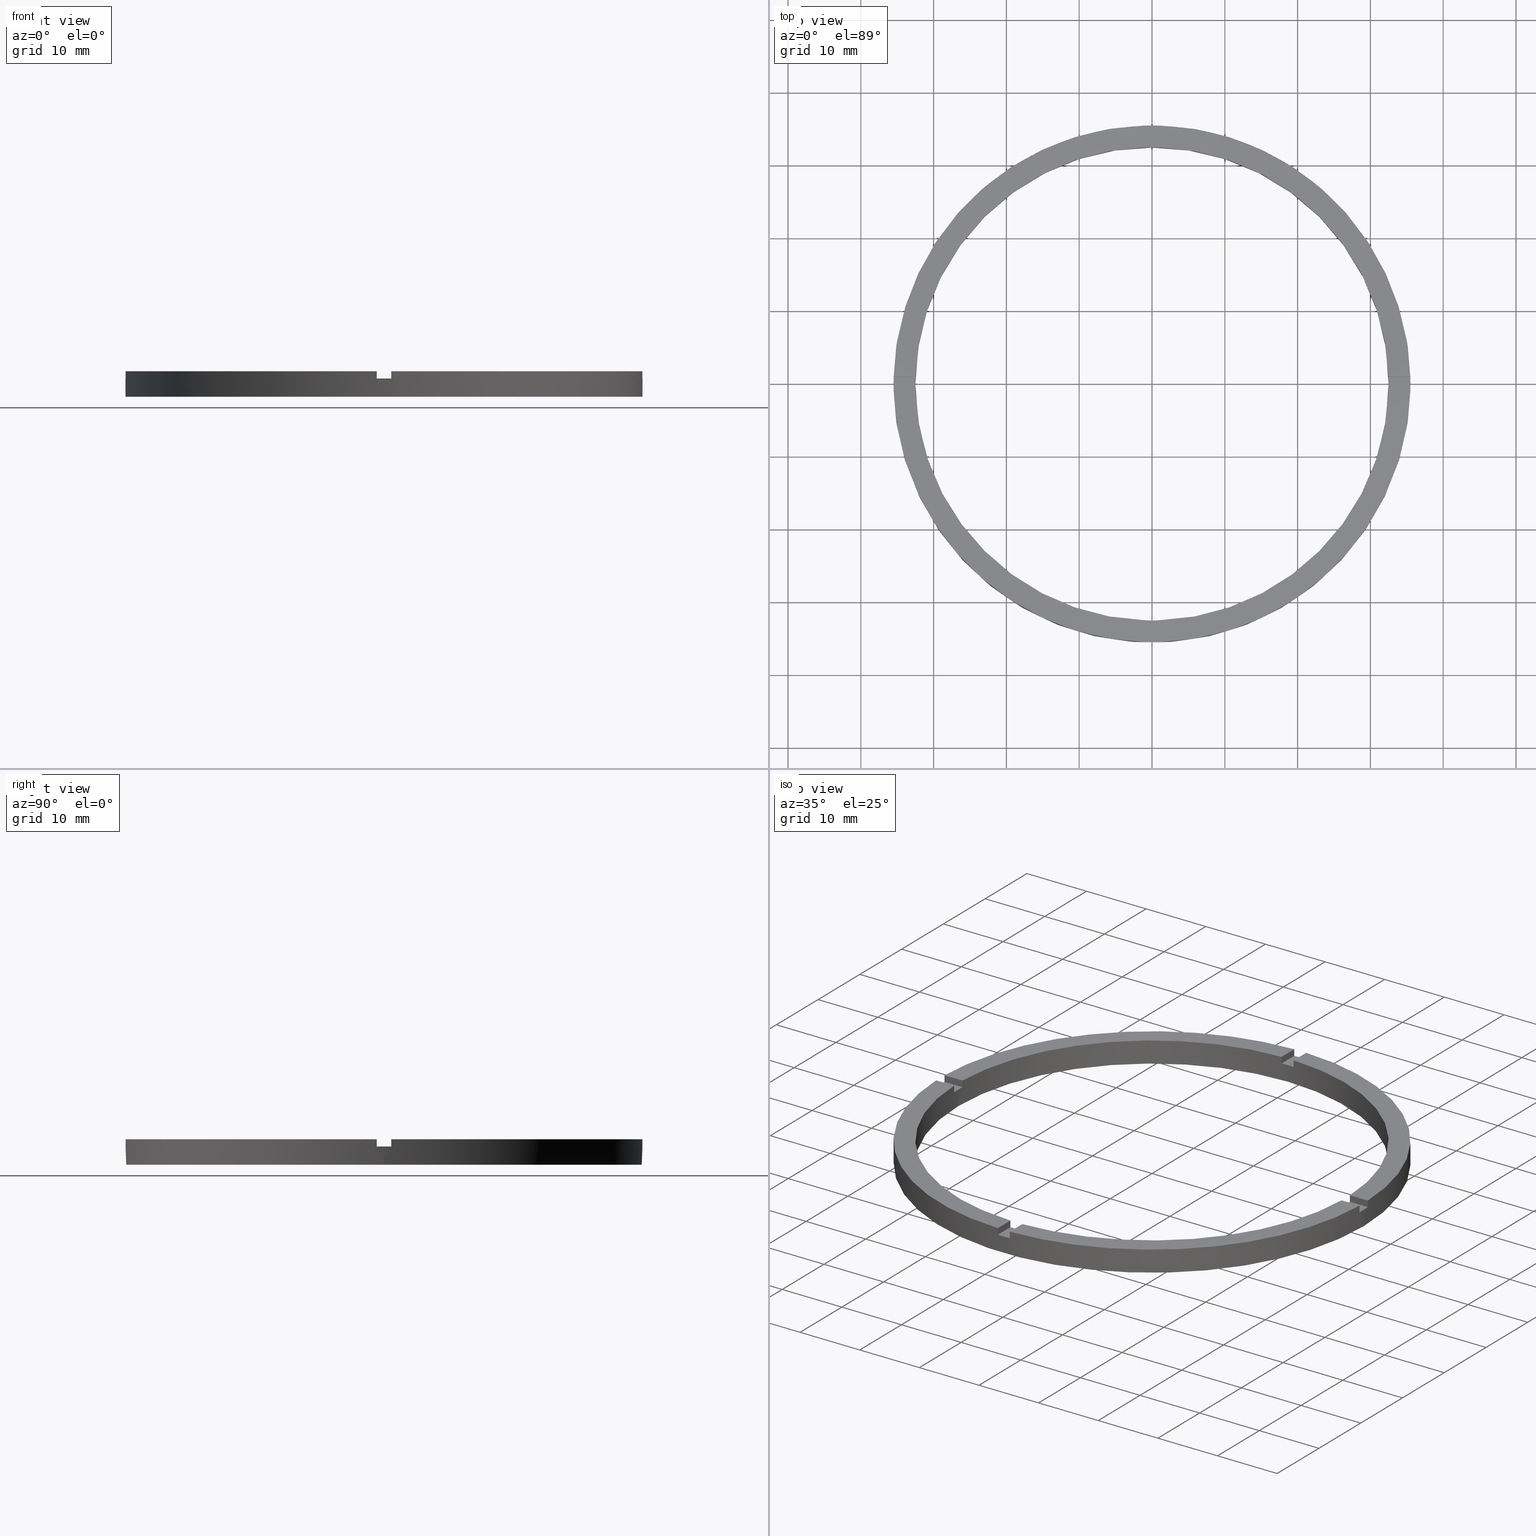
[diagram: canonical four-view strip — front | top / right | iso, engineering-drawing reading convention]
A machine part, canonical four-view strip (front | top / right | iso — engineering-drawing reading convention). The complete STEP part file that produces these views, byte-faithful:
ISO-10303-21;
HEADER;
FILE_DESCRIPTION (( 'STEP AP203' ),
    '1' );
FILE_NAME ('514146.step',
    '2024-12-26T02:41:58',
    ( 'MSI' ),
    ( '' ),
    'SwSTEP 2.0',
    'SolidWorks 2020',
    '' );
FILE_SCHEMA (( 'CONFIG_CONTROL_DESIGN' ));
ENDSEC;

DATA;
#1 = APPROVAL_STATUS ( 'not_yet_approved' ) ;
#2 = AXIS2_PLACEMENT_3D ( 'NONE', #292, #296, #331 ) ;
#3 = LINE ( 'NONE', #382, #281 ) ;
#4 = CARTESIAN_POINT ( 'NONE',  ( -35.50000000000000711, 0.000000000000000000, 0.000000000000000000 ) ) ;
#5 = VECTOR ( 'NONE', #123, 1000.000000000000000 ) ;
#6 = DIRECTION ( 'NONE',  ( 1.000000000000000000, 0.000000000000000000, 0.000000000000000000 ) ) ;
#7 = CC_DESIGN_PERSON_AND_ORGANIZATION_ASSIGNMENT ( #613, #562, ( #362 ) ) ;
#8 = CARTESIAN_POINT ( 'NONE',  ( 0.000000000000000000, 0.000000000000000000, 2.500000000000000000 ) ) ;
#9 = VECTOR ( 'NONE', #761, 1000.000000000000000 ) ;
#10 = EDGE_CURVE ( 'NONE', #427, #169, #137, .T. ) ;
#11 = VECTOR ( 'NONE', #768, 1000.000000000000000 ) ;
#12 = CARTESIAN_POINT ( 'NONE',  ( -32.50000000000000000, 0.000000000000000000, 3.500000000000000000 ) ) ;
#13 = LINE ( 'NONE', #33, #9 ) ;
#14 = DIRECTION ( 'NONE',  ( 0.000000000000000000, 0.000000000000000000, 1.000000000000000000 ) ) ;
#15 = CARTESIAN_POINT ( 'NONE',  ( 0.9999999999999751310, 32.48461174156157227, 2.500000000000000000 ) ) ;
#16 =( GEOMETRIC_REPRESENTATION_CONTEXT ( 3 ) GLOBAL_UNCERTAINTY_ASSIGNED_CONTEXT ( ( #523 ) ) GLOBAL_UNIT_ASSIGNED_CONTEXT ( ( #586, #43, #560 ) ) REPRESENTATION_CONTEXT ( 'NONE', 'WORKASPACE' ) );
#17 = DIRECTION ( 'NONE',  ( -1.000000000000000000, -6.505213034913025371E-17, -0.000000000000000000 ) ) ;
#18 = EDGE_CURVE ( 'NONE', #723, #457, #150, .T. ) ;
#19 = PLANE ( 'NONE',  #258 ) ;
#20 = ADVANCED_FACE ( 'NONE', ( #158 ), #433, .T. ) ;
#21 = CARTESIAN_POINT ( 'NONE',  ( 0.9999999999998397948, -35.48591269785801927, 3.500000000000000000 ) ) ;
#22 = AXIS2_PLACEMENT_3D ( 'NONE', #518, #741, #90 ) ;
#23 = CARTESIAN_POINT ( 'NONE',  ( -1.000000000000160760, -32.48461174156157227, 3.500000000000000000 ) ) ;
#24 = EDGE_CURVE ( 'NONE', #731, #686, #691, .T. ) ;
#25 = ADVANCED_FACE ( 'NONE', ( #694 ), #593, .F. ) ;
#26 = DIRECTION ( 'NONE',  ( 1.000000000000000000, 0.000000000000000000, 0.000000000000000000 ) ) ;
#27 = DIRECTION ( 'NONE',  ( 0.000000000000000000, 0.000000000000000000, 1.000000000000000000 ) ) ;
#28 = ADVANCED_FACE ( 'NONE', ( #695 ), #88, .F. ) ;
#29 = AXIS2_PLACEMENT_3D ( 'NONE', #780, #488, #398 ) ;
#30 = CARTESIAN_POINT ( 'NONE',  ( 0.000000000000000000, 0.000000000000000000, 2.500000000000000000 ) ) ;
#31 = CARTESIAN_POINT ( 'NONE',  ( 0.000000000000000000, 0.000000000000000000, 3.500000000000000000 ) ) ;
#32 = CARTESIAN_POINT ( 'NONE',  ( 0.9999999999999751310, 35.48591269785801217, 3.500000000000000000 ) ) ;
#33 = CARTESIAN_POINT ( 'NONE',  ( 0.9999999999998384625, -25.50000000000018119, 2.500000000000000000 ) ) ;
#34 = AXIS2_PLACEMENT_3D ( 'NONE', #363, #345, #308 ) ;
#35 = EDGE_CURVE ( 'NONE', #429, #499, #442, .T. ) ;
#36 = CARTESIAN_POINT ( 'NONE',  ( 35.48591269785800506, -1.000000000000157874, 3.500000000000000000 ) ) ;
#37 = DIRECTION ( 'NONE',  ( 0.000000000000000000, 0.000000000000000000, 1.000000000000000000 ) ) ;
#38 = DIRECTION ( 'NONE',  ( 1.000000000000000000, 6.505213034913025371E-17, 0.000000000000000000 ) ) ;
#39 = AXIS2_PLACEMENT_3D ( 'NONE', #555, #588, #642 ) ;
#40 = DIRECTION ( 'NONE',  ( 1.951563910473907735E-16, -1.000000000000000000, 0.000000000000000000 ) ) ;
#41 = EDGE_CURVE ( 'NONE', #183, #475, #696, .T. ) ;
#42 = DIRECTION ( 'NONE',  ( 0.000000000000000000, 0.000000000000000000, 1.000000000000000000 ) ) ;
#43 =( NAMED_UNIT ( * ) PLANE_ANGLE_UNIT ( ) SI_UNIT ( $, .RADIAN. ) );
#44 = CARTESIAN_POINT ( 'NONE',  ( 0.000000000000000000, 0.000000000000000000, 3.500000000000000000 ) ) ;
#45 = DIRECTION ( 'NONE',  ( 1.000000000000000000, 0.000000000000000000, -0.000000000000000000 ) ) ;
#46 = DIRECTION ( 'NONE',  ( 1.000000000000000000, -0.000000000000000000, 0.000000000000000000 ) ) ;
#47 = CARTESIAN_POINT ( 'NONE',  ( -1.000000000000160316, -35.48591269785800506, 3.500000000000000000 ) ) ;
#48 = VERTEX_POINT ( 'NONE', #253 ) ;
#49 = DIRECTION ( 'NONE',  ( -0.000000000000000000, -0.000000000000000000, -1.000000000000000000 ) ) ;
#50 = ORIENTED_EDGE ( 'NONE', *, *, #734, .F. ) ;
#51 = DIRECTION ( 'NONE',  ( 1.000000000000000000, 0.000000000000000000, -0.000000000000000000 ) ) ;
#52 = EDGE_CURVE ( 'NONE', #731, #427, #126, .T. ) ;
#53 = CARTESIAN_POINT ( 'NONE',  ( 0.9999999999999751310, 25.50000000000000355, 2.500000000000000000 ) ) ;
#54 = CARTESIAN_POINT ( 'NONE',  ( 0.000000000000000000, 0.000000000000000000, 3.500000000000000000 ) ) ;
#55 = AXIS2_PLACEMENT_3D ( 'NONE', #54, #758, #444 ) ;
#56 = CARTESIAN_POINT ( 'NONE',  ( -25.50000000000018829, -1.000000000000024869, 3.500000000000000000 ) ) ;
#57 = ADVANCED_FACE ( 'NONE', ( #408 ), #447, .F. ) ;
#58 = CARTESIAN_POINT ( 'NONE',  ( 35.48591269785801927, 0.9999999999998421263, 3.500000000000000000 ) ) ;
#59 = CARTESIAN_POINT ( 'NONE',  ( 35.48591269785800506, -1.000000000000157874, 2.500000000000000000 ) ) ;
#60 = EDGE_LOOP ( 'NONE', ( #647, #648, #226, #515 ) ) ;
#61 = CC_DESIGN_SECURITY_CLASSIFICATION ( #592, ( #140 ) ) ;
#62 = CARTESIAN_POINT ( 'NONE',  ( 0.000000000000000000, 0.000000000000000000, 3.500000000000000000 ) ) ;
#63 = AXIS2_PLACEMENT_3D ( 'NONE', #597, #511, #38 ) ;
#64 = DIRECTION ( 'NONE',  ( 1.000000000000000000, 1.951563910473907735E-16, -0.000000000000000000 ) ) ;
#65 = CARTESIAN_POINT ( 'NONE',  ( 0.000000000000000000, 0.000000000000000000, 2.500000000000000000 ) ) ;
#66 = ADVANCED_FACE ( 'NONE', ( #458 ), #769, .T. ) ;
#67 = VECTOR ( 'NONE', #434, 1000.000000000000000 ) ;
#68 = CALENDAR_DATE ( 2024, 26, 12 ) ;
#69 = AXIS2_PLACEMENT_3D ( 'NONE', #307, #656, #747 ) ;
#70 = PERSON_AND_ORGANIZATION ( #275, #616 ) ;
#71 = ORIENTED_EDGE ( 'NONE', *, *, #530, .T. ) ;
#72 = CIRCLE ( 'NONE', #305, 35.50000000000000711 ) ;
#73 = COORDINATED_UNIVERSAL_TIME_OFFSET ( 8, 0, .AHEAD. ) ;
#74 = CALENDAR_DATE ( 2024, 26, 12 ) ;
#75 = DATE_AND_TIME ( #74, #614 ) ;
#76 = APPROVAL_PERSON_ORGANIZATION ( #612, #309, #247 ) ;
#77 = DIRECTION ( 'NONE',  ( 1.000000000000000000, 0.000000000000000000, 0.000000000000000000 ) ) ;
#78 = FACE_BOUND ( 'NONE', #397, .T. ) ;
#79 = DIRECTION ( 'NONE',  ( 1.000000000000000000, 0.000000000000000000, -0.000000000000000000 ) ) ;
#80 = APPROVAL_PERSON_ORGANIZATION ( #355, #122, #303 ) ;
#81 = EDGE_CURVE ( 'NONE', #217, #499, #700, .T. ) ;
#82 = VECTOR ( 'NONE', #17, 1000.000000000000000 ) ;
#83 = LOCAL_TIME ( 10, 41, 58.00000000000000000, #357 ) ;
#84 = DIRECTION ( 'NONE',  ( 1.000000000000000000, 0.000000000000000000, 0.000000000000000000 ) ) ;
#85 = ORIENTED_EDGE ( 'NONE', *, *, #558, .T. ) ;
#86 = VECTOR ( 'NONE', #423, 1000.000000000000000 ) ;
#87 = CALENDAR_DATE ( 2024, 26, 12 ) ;
#88 = PLANE ( 'NONE',  #467 ) ;
#89 = FACE_OUTER_BOUND ( 'NONE', #153, .T. ) ;
#90 = DIRECTION ( 'NONE',  ( 1.000000000000000000, 0.000000000000000000, 0.000000000000000000 ) ) ;
#91 = ORIENTED_EDGE ( 'NONE', *, *, #567, .T. ) ;
#92 = ORIENTED_EDGE ( 'NONE', *, *, #736, .T. ) ;
#93 = CARTESIAN_POINT ( 'NONE',  ( 0.000000000000000000, 0.000000000000000000, 3.500000000000000000 ) ) ;
#94 = ORIENTED_EDGE ( 'NONE', *, *, #131, .T. ) ;
#95 = DATE_TIME_ROLE ( 'classification_date' ) ;
#96 = CIRCLE ( 'NONE', #198, 35.50000000000000711 ) ;
#97 = CARTESIAN_POINT ( 'NONE',  ( -35.48591269785801217, -1.000000000000026867, 3.500000000000000000 ) ) ;
#98 = LINE ( 'NONE', #569, #381 ) ;
#99 = DIRECTION ( 'NONE',  ( 1.000000000000000000, 0.000000000000000000, 0.000000000000000000 ) ) ;
#100 = CIRCLE ( 'NONE', #539, 35.50000000000000711 ) ;
#101 = DIRECTION ( 'NONE',  ( 1.000000000000000000, 0.000000000000000000, 0.000000000000000000 ) ) ;
#102 = EDGE_CURVE ( 'NONE', #169, #508, #170, .T. ) ;
#103 = ORIENTED_EDGE ( 'NONE', *, *, #245, .T. ) ;
#104 = CIRCLE ( 'NONE', #22, 32.50000000000000000 ) ;
#105 = EDGE_CURVE ( 'NONE', #725, #708, #707, .T. ) ;
#106 = DIRECTION ( 'NONE',  ( -0.000000000000000000, -0.000000000000000000, -1.000000000000000000 ) ) ;
#107 = EDGE_LOOP ( 'NONE', ( #336, #194, #479, #497, #462, #464, #735, #730, #319, #172, #214, #738 ) ) ;
#108 = CARTESIAN_POINT ( 'NONE',  ( 0.9999999999999751310, 35.48591269785801217, 3.500000000000000000 ) ) ;
#109 = ORIENTED_EDGE ( 'NONE', *, *, #315, .F. ) ;
#110 = CARTESIAN_POINT ( 'NONE',  ( 35.50000000000000711, 4.347496136973104070E-15, 0.000000000000000000 ) ) ;
#111 = ORIENTED_EDGE ( 'NONE', *, *, #533, .F. ) ;
#112 = DIRECTION ( 'NONE',  ( 1.000000000000000000, 0.000000000000000000, 0.000000000000000000 ) ) ;
#113 = AXIS2_PLACEMENT_3D ( 'NONE', #30, #231, #26 ) ;
#114 = CARTESIAN_POINT ( 'NONE',  ( -25.50000000000018829, 0.9999999999999751310, 2.500000000000000000 ) ) ;
#115 = EDGE_LOOP ( 'NONE', ( #436, #369, #339, #732, #164, #507 ) ) ;
#116 = ORIENTED_EDGE ( 'NONE', *, *, #201, .T. ) ;
#117 = PLANE ( 'NONE',  #161 ) ;
#118 = VERTEX_POINT ( 'NONE', #274 ) ;
#119 = DIRECTION ( 'NONE',  ( -0.000000000000000000, -0.000000000000000000, -1.000000000000000000 ) ) ;
#120 = DIRECTION ( 'NONE',  ( 0.000000000000000000, 0.000000000000000000, 1.000000000000000000 ) ) ;
#121 = ADVANCED_FACE ( 'NONE', ( #711 ), #600, .F. ) ;
#122 = APPROVAL ( #591, 'δָ��' ) ;
#123 = DIRECTION ( 'NONE',  ( 0.000000000000000000, 0.000000000000000000, 1.000000000000000000 ) ) ;
#124 = EDGE_CURVE ( 'NONE', #48, #174, #165, .T. ) ;
#125 = PLANE ( 'NONE',  #39 ) ;
#126 = CIRCLE ( 'NONE', #2, 35.50000000000000711 ) ;
#127 = CARTESIAN_POINT ( 'NONE',  ( 0.000000000000000000, 0.000000000000000000, 0.000000000000000000 ) ) ;
#128 = ORIENTED_EDGE ( 'NONE', *, *, #659, .T. ) ;
#129 = ORIENTED_EDGE ( 'NONE', *, *, #572, .F. ) ;
#130 = CARTESIAN_POINT ( 'NONE',  ( 0.000000000000000000, 0.000000000000000000, 2.500000000000000000 ) ) ;
#131 = EDGE_CURVE ( 'NONE', #176, #473, #136, .T. ) ;
#132 = CARTESIAN_POINT ( 'NONE',  ( 25.49999999999999645, -1.000000000000158540, 2.500000000000000000 ) ) ;
#133 = VECTOR ( 'NONE', #380, 1000.000000000000000 ) ;
#134 = ORIENTED_EDGE ( 'NONE', *, *, #323, .T. ) ;
#135 = DIRECTION ( 'NONE',  ( 1.000000000000000000, 0.000000000000000000, -0.000000000000000000 ) ) ;
#136 = LINE ( 'NONE', #12, #440 ) ;
#137 = LINE ( 'NONE', #557, #415 ) ;
#138 = CARTESIAN_POINT ( 'NONE',  ( 0.000000000000000000, 0.000000000000000000, 2.500000000000000000 ) ) ;
#139 = CIRCLE ( 'NONE', #360, 35.50000000000000711 ) ;
#140 = PRODUCT_DEFINITION_FORMATION_WITH_SPECIFIED_SOURCE ( '�κ�', '', #362, .NOT_KNOWN. ) ;
#141 = LINE ( 'NONE', #372, #445 ) ;
#142 = VECTOR ( 'NONE', #564, 1000.000000000000000 ) ;
#143 = AXIS2_PLACEMENT_3D ( 'NONE', #596, #181, #45 ) ;
#144 = ORIENTED_EDGE ( 'NONE', *, *, #601, .T. ) ;
#145 = CARTESIAN_POINT ( 'NONE',  ( -1.000000000000024869, 25.50000000000000355, 2.500000000000000000 ) ) ;
#146 = PERSON_AND_ORGANIZATION_ROLE ( 'classification_officer' ) ;
#147 = LINE ( 'NONE', #333, #424 ) ;
#148 = ORIENTED_EDGE ( 'NONE', *, *, #471, .F. ) ;
#149 = DIRECTION ( 'NONE',  ( -0.000000000000000000, -0.000000000000000000, -1.000000000000000000 ) ) ;
#150 = LINE ( 'NONE', #705, #142 ) ;
#151 = CIRCLE ( 'NONE', #270, 35.50000000000000711 ) ;
#152 = CARTESIAN_POINT ( 'NONE',  ( 32.48461174156157938, 0.9999999999998419042, 2.500000000000000000 ) ) ;
#153 = EDGE_LOOP ( 'NONE', ( #111, #472 ) ) ;
#154 = LINE ( 'NONE', #97, #450 ) ;
#155 = VERTEX_POINT ( 'NONE', #658 ) ;
#156 = PERSON_AND_ORGANIZATION_ROLE ( 'creator' ) ;
#157 = LINE ( 'NONE', #478, #186 ) ;
#158 = FACE_OUTER_BOUND ( 'NONE', #391, .T. ) ;
#159 = DIRECTION ( 'NONE',  ( 1.000000000000000000, 1.951563910473907735E-16, 0.000000000000000000 ) ) ;
#160 = LINE ( 'NONE', #652, #414 ) ;
#161 = AXIS2_PLACEMENT_3D ( 'NONE', #681, #320, #135 ) ;
#162 = DIRECTION ( 'NONE',  ( -0.000000000000000000, 0.000000000000000000, 1.000000000000000000 ) ) ;
#163 = CARTESIAN_POINT ( 'NONE',  ( -25.50000000000018829, -1.000000000000024869, 2.500000000000000000 ) ) ;
#164 = ORIENTED_EDGE ( 'NONE', *, *, #558, .F. ) ;
#165 = LINE ( 'NONE', #58, #133 ) ;
#166 = COORDINATED_UNIVERSAL_TIME_OFFSET ( 8, 0, .AHEAD. ) ;
#167 = VECTOR ( 'NONE', #527, 1000.000000000000000 ) ;
#168 = PLANE ( 'NONE',  #55 ) ;
#169 = VERTEX_POINT ( 'NONE', #110 ) ;
#170 = CIRCLE ( 'NONE', #687, 35.50000000000000711 ) ;
#171 = EDGE_CURVE ( 'NONE', #212, #205, #141, .T. ) ;
#172 = ORIENTED_EDGE ( 'NONE', *, *, #412, .T. ) ;
#173 = VECTOR ( 'NONE', #106, 1000.000000000000000 ) ;
#174 = VERTEX_POINT ( 'NONE', #223 ) ;
#175 = CARTESIAN_POINT ( 'NONE',  ( -32.48461174156157227, 0.9999999999999737987, 2.500000000000000000 ) ) ;
#176 = VERTEX_POINT ( 'NONE', #313 ) ;
#177 = EDGE_CURVE ( 'NONE', #221, #473, #698, .T. ) ;
#178 = COORDINATED_UNIVERSAL_TIME_OFFSET ( 8, 0, .AHEAD. ) ;
#179 = ORIENTED_EDGE ( 'NONE', *, *, #579, .T. ) ;
#180 = VERTEX_POINT ( 'NONE', #175 ) ;
#181 = DIRECTION ( 'NONE',  ( 0.000000000000000000, 0.000000000000000000, 1.000000000000000000 ) ) ;
#182 = VECTOR ( 'NONE', #509, 1000.000000000000000 ) ;
#183 = VERTEX_POINT ( 'NONE', #573 ) ;
#184 = ORIENTED_EDGE ( 'NONE', *, *, #323, .F. ) ;
#185 = APPLICATION_PROTOCOL_DEFINITION ( 'international standard', 'config_control_design', 1994, #776 ) ;
#186 = VECTOR ( 'NONE', #538, 1000.000000000000000 ) ;
#187 = VERTEX_POINT ( 'NONE', #15 ) ;
#188 = APPROVAL_DATE_TIME ( #715, #256 ) ;
#189 = DIRECTION ( 'NONE',  ( -1.000000000000000000, -1.951563910473907735E-16, 0.000000000000000000 ) ) ;
#190 = CIRCLE ( 'NONE', #243, 35.50000000000000711 ) ;
#191 = EDGE_LOOP ( 'NONE', ( #428, #651, #745, #643 ) ) ;
#192 = ORIENTED_EDGE ( 'NONE', *, *, #349, .F. ) ;
#193 = SHAPE_DEFINITION_REPRESENTATION ( #663, #542 ) ;
#194 = ORIENTED_EDGE ( 'NONE', *, *, #10, .T. ) ;
#195 = CC_DESIGN_APPROVAL ( #309, ( #140 ) ) ;
#196 = ORIENTED_EDGE ( 'NONE', *, *, #621, .T. ) ;
#197 = ORIENTED_EDGE ( 'NONE', *, *, #322, .T. ) ;
#198 = AXIS2_PLACEMENT_3D ( 'NONE', #302, #298, #661 ) ;
#199 = ORIENTED_EDGE ( 'NONE', *, *, #273, .T. ) ;
#200 = ORIENTED_EDGE ( 'NONE', *, *, #315, .T. ) ;
#201 = EDGE_CURVE ( 'NONE', #155, #429, #154, .T. ) ;
#202 = DIRECTION ( 'NONE',  ( 0.000000000000000000, 1.000000000000000000, 0.000000000000000000 ) ) ;
#203 = VERTEX_POINT ( 'NONE', #615 ) ;
#204 = ORIENTED_EDGE ( 'NONE', *, *, #222, .F. ) ;
#205 = VERTEX_POINT ( 'NONE', #674 ) ;
#206 = CARTESIAN_POINT ( 'NONE',  ( 0.000000000000000000, 0.000000000000000000, 3.500000000000000000 ) ) ;
#207 = EDGE_LOOP ( 'NONE', ( #742, #699, #204, #744 ) ) ;
#208 = ORIENTED_EDGE ( 'NONE', *, *, #655, .T. ) ;
#209 = ORIENTED_EDGE ( 'NONE', *, *, #386, .T. ) ;
#210 = ORIENTED_EDGE ( 'NONE', *, *, #394, .F. ) ;
#211 = DIRECTION ( 'NONE',  ( -0.000000000000000000, -0.000000000000000000, -1.000000000000000000 ) ) ;
#212 = VERTEX_POINT ( 'NONE', #762 ) ;
#213 = PRODUCT_RELATED_PRODUCT_CATEGORY ( 'detail', '', ( #362 ) ) ;
#214 = ORIENTED_EDGE ( 'NONE', *, *, #565, .F. ) ;
#215 = CARTESIAN_POINT ( 'NONE',  ( 25.49999999999999645, -1.000000000000158540, 3.500000000000000000 ) ) ;
#216 = ADVANCED_FACE ( 'NONE', ( #435 ), #570, .F. ) ;
#217 = VERTEX_POINT ( 'NONE', #739 ) ;
#218 = AXIS2_PLACEMENT_3D ( 'NONE', #387, #404, #580 ) ;
#219 = ORIENTED_EDGE ( 'NONE', *, *, #567, .F. ) ;
#220 = EDGE_LOOP ( 'NONE', ( #750, #729, #498, #219, #148, #196 ) ) ;
#221 = VERTEX_POINT ( 'NONE', #260 ) ;
#222 = EDGE_CURVE ( 'NONE', #714, #607, #160, .T. ) ;
#223 = CARTESIAN_POINT ( 'NONE',  ( 35.48591269785801927, 0.9999999999998421263, 2.500000000000000000 ) ) ;
#224 = ORIENTED_EDGE ( 'NONE', *, *, #639, .F. ) ;
#225 = ORIENTED_EDGE ( 'NONE', *, *, #412, .F. ) ;
#226 = ORIENTED_EDGE ( 'NONE', *, *, #777, .F. ) ;
#227 = CARTESIAN_POINT ( 'NONE',  ( 0.000000000000000000, 0.000000000000000000, 3.500000000000000000 ) ) ;
#228 = ORIENTED_EDGE ( 'NONE', *, *, #673, .F. ) ;
#229 = EDGE_LOOP ( 'NONE', ( #224, #632, #346, #733 ) ) ;
#230 = ORIENTED_EDGE ( 'NONE', *, *, #52, .F. ) ;
#231 = DIRECTION ( 'NONE',  ( -0.000000000000000000, 0.000000000000000000, 1.000000000000000000 ) ) ;
#232 = ORIENTED_EDGE ( 'NONE', *, *, #611, .F. ) ;
#233 = DIRECTION ( 'NONE',  ( 1.000000000000000000, 6.505213034913025371E-17, 0.000000000000000000 ) ) ;
#234 = ORIENTED_EDGE ( 'NONE', *, *, #41, .T. ) ;
#235 = ORIENTED_EDGE ( 'NONE', *, *, #332, .F. ) ;
#236 = ADVANCED_FACE ( 'NONE', ( #692 ), #19, .T. ) ;
#237 = CARTESIAN_POINT ( 'NONE',  ( 0.000000000000000000, 0.000000000000000000, 3.500000000000000000 ) ) ;
#238 = ORIENTED_EDGE ( 'NONE', *, *, #533, .T. ) ;
#239 = DIRECTION ( 'NONE',  ( 0.000000000000000000, 0.000000000000000000, 1.000000000000000000 ) ) ;
#240 = EDGE_LOOP ( 'NONE', ( #636, #483, #490, #757 ) ) ;
#241 = DIRECTION ( 'NONE',  ( 0.000000000000000000, 0.000000000000000000, 1.000000000000000000 ) ) ;
#242 = DIRECTION ( 'NONE',  ( -1.000000000000000000, 0.000000000000000000, 0.000000000000000000 ) ) ;
#243 = AXIS2_PLACEMENT_3D ( 'NONE', #65, #295, #84 ) ;
#244 = DIRECTION ( 'NONE',  ( -1.301042606982605074E-16, 1.000000000000000000, 0.000000000000000000 ) ) ;
#245 = EDGE_CURVE ( 'NONE', #187, #716, #417, .T. ) ;
#246 = DIRECTION ( 'NONE',  ( 0.000000000000000000, 1.000000000000000000, 0.000000000000000000 ) ) ;
#247 = APPROVAL_ROLE ( '' ) ;
#248 = DIRECTION ( 'NONE',  ( -1.000000000000000000, 0.000000000000000000, 0.000000000000000000 ) ) ;
#249 = AXIS2_PLACEMENT_3D ( 'NONE', #335, #342, #326 ) ;
#250 = CARTESIAN_POINT ( 'NONE',  ( 0.000000000000000000, 0.000000000000000000, 2.500000000000000000 ) ) ;
#251 = EDGE_CURVE ( 'NONE', #203, #607, #409, .T. ) ;
#252 = MECHANICAL_CONTEXT ( 'NONE', #505, 'mechanical' ) ;
#253 = CARTESIAN_POINT ( 'NONE',  ( 35.48591269785801927, 0.9999999999998421263, 3.500000000000000000 ) ) ;
#254 = CARTESIAN_POINT ( 'NONE',  ( 35.50000000000000711, 4.347496136973104070E-15, 2.500000000000000000 ) ) ;
#255 = PLANE ( 'NONE',  #63 ) ;
#256 = APPROVAL ( #350, 'δָ��' ) ;
#257 = CARTESIAN_POINT ( 'NONE',  ( -25.50000000000018829, -1.000000000000024869, 2.500000000000000000 ) ) ;
#258 = AXIS2_PLACEMENT_3D ( 'NONE', #316, #534, #304 ) ;
#259 = CARTESIAN_POINT ( 'NONE',  ( 32.50000000000000000, 3.980102097228898626E-15, 3.500000000000000000 ) ) ;
#260 = CARTESIAN_POINT ( 'NONE',  ( 32.50000000000000000, 3.980102097228898626E-15, 0.000000000000000000 ) ) ;
#261 = CARTESIAN_POINT ( 'NONE',  ( -35.48591269785801217, 0.9999999999999731326, 3.500000000000000000 ) ) ;
#262 = CC_DESIGN_PERSON_AND_ORGANIZATION_ASSIGNMENT ( #701, #156, ( #140 ) ) ;
#263 = CARTESIAN_POINT ( 'NONE',  ( -1.000000000000024869, 32.48461174156157227, 3.500000000000000000 ) ) ;
#264 = EDGE_CURVE ( 'NONE', #187, #475, #702, .T. ) ;
#265 = CARTESIAN_POINT ( 'NONE',  ( 0.000000000000000000, 0.000000000000000000, 2.500000000000000000 ) ) ;
#266 = VECTOR ( 'NONE', #491, 1000.000000000000000 ) ;
#267 = CARTESIAN_POINT ( 'NONE',  ( 0.000000000000000000, 0.000000000000000000, 3.500000000000000000 ) ) ;
#268 = VECTOR ( 'NONE', #685, 1000.000000000000000 ) ;
#269 = DIRECTION ( 'NONE',  ( 1.000000000000000000, 0.000000000000000000, 0.000000000000000000 ) ) ;
#270 = AXIS2_PLACEMENT_3D ( 'NONE', #237, #690, #550 ) ;
#271 = LINE ( 'NONE', #215, #266 ) ;
#272 = FACE_OUTER_BOUND ( 'NONE', #664, .T. ) ;
#273 = EDGE_CURVE ( 'NONE', #180, #714, #706, .T. ) ;
#274 = CARTESIAN_POINT ( 'NONE',  ( -1.000000000000024869, 35.48591269785801217, 2.500000000000000000 ) ) ;
#275 = PERSON ( 'δָ��', 'δָ��', 'δָ��', ('δָ��'), ('δָ��'), ('δָ��') ) ;
#276 = PLANE ( 'NONE',  #403 ) ;
#277 = CIRCLE ( 'NONE', #594, 32.50000000000000000 ) ;
#278 = ADVANCED_FACE ( 'NONE', ( #411 ), #117, .T. ) ;
#279 = VECTOR ( 'NONE', #64, 1000.000000000000000 ) ;
#280 = CARTESIAN_POINT ( 'NONE',  ( -35.48591269785801217, 0.9999999999999731326, 2.500000000000000000 ) ) ;
#281 = VECTOR ( 'NONE', #763, 1000.000000000000000 ) ;
#282 = AXIS2_PLACEMENT_3D ( 'NONE', #324, #543, #775 ) ;
#283 = LINE ( 'NONE', #481, #5 ) ;
#284 = FACE_OUTER_BOUND ( 'NONE', #465, .T. ) ;
#285 = ADVANCED_FACE ( 'NONE', ( #420 ), #675, .T. ) ;
#286 = CARTESIAN_POINT ( 'NONE',  ( 32.48461174156157938, 0.9999999999998419042, 3.500000000000000000 ) ) ;
#287 = DIRECTION ( 'NONE',  ( 1.000000000000000000, 0.000000000000000000, -0.000000000000000000 ) ) ;
#288 = ADVANCED_FACE ( 'NONE', ( #677 ), #290, .T. ) ;
#289 = EDGE_CURVE ( 'NONE', #418, #686, #151, .T. ) ;
#290 = PLANE ( 'NONE',  #218 ) ;
#291 = DIRECTION ( 'NONE',  ( 0.000000000000000000, 0.000000000000000000, 1.000000000000000000 ) ) ;
#292 = CARTESIAN_POINT ( 'NONE',  ( 0.000000000000000000, 0.000000000000000000, 2.500000000000000000 ) ) ;
#293 = DIRECTION ( 'NONE',  ( 1.000000000000000000, 0.000000000000000000, 0.000000000000000000 ) ) ;
#294 = CARTESIAN_POINT ( 'NONE',  ( -32.48461174156157227, -1.000000000000026201, 3.500000000000000000 ) ) ;
#295 = DIRECTION ( 'NONE',  ( 0.000000000000000000, 0.000000000000000000, 1.000000000000000000 ) ) ;
#296 = DIRECTION ( 'NONE',  ( 0.000000000000000000, 0.000000000000000000, 1.000000000000000000 ) ) ;
#297 = AXIS2_PLACEMENT_3D ( 'NONE', #31, #241, #79 ) ;
#298 = DIRECTION ( 'NONE',  ( 0.000000000000000000, 0.000000000000000000, 1.000000000000000000 ) ) ;
#299 = EDGE_CURVE ( 'NONE', #180, #743, #672, .T. ) ;
#300 = DIRECTION ( 'NONE',  ( 0.000000000000000000, 0.000000000000000000, 1.000000000000000000 ) ) ;
#301 = DIRECTION ( 'NONE',  ( -0.000000000000000000, -0.000000000000000000, -1.000000000000000000 ) ) ;
#302 = CARTESIAN_POINT ( 'NONE',  ( 0.000000000000000000, 0.000000000000000000, 2.500000000000000000 ) ) ;
#303 = APPROVAL_ROLE ( '' ) ;
#304 = DIRECTION ( 'NONE',  ( 1.000000000000000000, 0.000000000000000000, -0.000000000000000000 ) ) ;
#305 = AXIS2_PLACEMENT_3D ( 'NONE', #206, #751, #99 ) ;
#306 = EDGE_CURVE ( 'NONE', #155, #457, #139, .T. ) ;
#307 = CARTESIAN_POINT ( 'NONE',  ( 25.49999999999999645, 0.9999999999998414602, 2.500000000000000000 ) ) ;
#308 = DIRECTION ( 'NONE',  ( -1.000000000000000000, 0.000000000000000000, 0.000000000000000000 ) ) ;
#309 = APPROVAL ( #1, 'δָ��' ) ;
#310 = DIRECTION ( 'NONE',  ( 1.000000000000000000, 0.000000000000000000, 0.000000000000000000 ) ) ;
#311 = AXIS2_PLACEMENT_3D ( 'NONE', #329, #678, #244 ) ;
#312 = CARTESIAN_POINT ( 'NONE',  ( -32.50000000000000000, 0.000000000000000000, 0.000000000000000000 ) ) ;
#313 = CARTESIAN_POINT ( 'NONE',  ( -32.50000000000000000, 0.000000000000000000, 2.500000000000000000 ) ) ;
#314 = CARTESIAN_POINT ( 'NONE',  ( -1.000000000000024869, 32.48461174156157227, 2.500000000000000000 ) ) ;
#315 = EDGE_CURVE ( 'NONE', #475, #480, #147, .T. ) ;
#316 = CARTESIAN_POINT ( 'NONE',  ( 0.000000000000000000, 0.000000000000000000, 2.500000000000000000 ) ) ;
#317 = PLANE ( 'NONE',  #671 ) ;
#318 = ORIENTED_EDGE ( 'NONE', *, *, #131, .F. ) ;
#319 = ORIENTED_EDGE ( 'NONE', *, *, #426, .F. ) ;
#320 = DIRECTION ( 'NONE',  ( 0.000000000000000000, -0.000000000000000000, 1.000000000000000000 ) ) ;
#321 = CARTESIAN_POINT ( 'NONE',  ( -1.000000000000024869, 35.48591269785801217, 3.500000000000000000 ) ) ;
#322 = EDGE_CURVE ( 'NONE', #626, #205, #682, .T. ) ;
#323 = EDGE_CURVE ( 'NONE', #187, #708, #684, .T. ) ;
#324 = CARTESIAN_POINT ( 'NONE',  ( -1.000000000000161648, -25.50000000000018119, 2.500000000000000000 ) ) ;
#325 = CARTESIAN_POINT ( 'NONE',  ( -1.000000000000161648, -25.50000000000018119, 2.500000000000000000 ) ) ;
#326 = DIRECTION ( 'NONE',  ( -1.000000000000000000, 0.000000000000000000, 0.000000000000000000 ) ) ;
#327 = ADVANCED_FACE ( 'NONE', ( #430 ), #125, .F. ) ;
#328 = CARTESIAN_POINT ( 'NONE',  ( 0.000000000000000000, 0.000000000000000000, 3.500000000000000000 ) ) ;
#329 = CARTESIAN_POINT ( 'NONE',  ( 0.9999999999998384625, -25.50000000000018119, 2.500000000000000000 ) ) ;
#330 = AXIS2_PLACEMENT_3D ( 'NONE', #250, #697, #771 ) ;
#331 = DIRECTION ( 'NONE',  ( 1.000000000000000000, 0.000000000000000000, 0.000000000000000000 ) ) ;
#332 = EDGE_CURVE ( 'NONE', #406, #720, #432, .T. ) ;
#333 = CARTESIAN_POINT ( 'NONE',  ( 0.9999999999999751310, 25.50000000000000355, 3.500000000000000000 ) ) ;
#334 = EDGE_CURVE ( 'NONE', #217, #723, #688, .T. ) ;
#335 = CARTESIAN_POINT ( 'NONE',  ( 0.000000000000000000, 0.000000000000000000, 3.500000000000000000 ) ) ;
#336 = ORIENTED_EDGE ( 'NONE', *, *, #514, .F. ) ;
#337 = FACE_OUTER_BOUND ( 'NONE', #446, .T. ) ;
#338 = CARTESIAN_POINT ( 'NONE',  ( 0.000000000000000000, 0.000000000000000000, 0.000000000000000000 ) ) ;
#339 = ORIENTED_EDGE ( 'NONE', *, *, #35, .T. ) ;
#340 = DATE_AND_TIME ( #87, #628 ) ;
#341 = CYLINDRICAL_SURFACE ( 'NONE', #34, 32.50000000000000000 ) ;
#342 = DIRECTION ( 'NONE',  ( -0.000000000000000000, -0.000000000000000000, -1.000000000000000000 ) ) ;
#343 = CIRCLE ( 'NONE', #644, 32.50000000000000000 ) ;
#344 = AXIS2_PLACEMENT_3D ( 'NONE', #525, #439, #454 ) ;
#345 = DIRECTION ( 'NONE',  ( -0.000000000000000000, -0.000000000000000000, -1.000000000000000000 ) ) ;
#346 = ORIENTED_EDGE ( 'NONE', *, *, #18, .T. ) ;
#347 = LINE ( 'NONE', #47, #351 ) ;
#348 = DATE_AND_TIME ( #68, #83 ) ;
#349 = EDGE_CURVE ( 'NONE', #626, #495, #157, .T. ) ;
#350 = APPROVAL_STATUS ( 'not_yet_approved' ) ;
#351 = VECTOR ( 'NONE', #14, 1000.000000000000000 ) ;
#352 = DIRECTION ( 'NONE',  ( 0.000000000000000000, 0.000000000000000000, 1.000000000000000000 ) ) ;
#353 = CARTESIAN_POINT ( 'NONE',  ( -32.48461174156157227, -1.000000000000026201, 2.500000000000000000 ) ) ;
#354 = FACE_OUTER_BOUND ( 'NONE', #207, .T. ) ;
#355 = PERSON_AND_ORGANIZATION ( #275, #616 ) ;
#356 = VECTOR ( 'NONE', #119, 1000.000000000000000 ) ;
#357 = COORDINATED_UNIVERSAL_TIME_OFFSET ( 8, 0, .AHEAD. ) ;
#358 = APPROVAL_DATE_TIME ( #348, #122 ) ;
#359 = EDGE_LOOP ( 'NONE', ( #746, #91, #232, #234, #485, #134, #504, #92, #753, #85, #94, #676 ) ) ;
#360 = AXIS2_PLACEMENT_3D ( 'NONE', #328, #37, #392 ) ;
#361 = COORDINATED_UNIVERSAL_TIME_OFFSET ( 8, 0, .AHEAD. ) ;
#362 = PRODUCT ( '514146', '514146', '', ( #252 ) ) ;
#363 = CARTESIAN_POINT ( 'NONE',  ( 0.000000000000000000, 0.000000000000000000, 3.500000000000000000 ) ) ;
#364 = CIRCLE ( 'NONE', #587, 32.50000000000000000 ) ;
#365 = EDGE_CURVE ( 'NONE', #743, #493, #190, .T. ) ;
#366 = ORIENTED_EDGE ( 'NONE', *, *, #349, .T. ) ;
#367 = LINE ( 'NONE', #286, #617 ) ;
#368 = DIRECTION ( 'NONE',  ( 1.000000000000000000, 0.000000000000000000, 0.000000000000000000 ) ) ;
#369 = ORIENTED_EDGE ( 'NONE', *, *, #765, .T. ) ;
#370 = VECTOR ( 'NONE', #528, 1000.000000000000000 ) ;
#371 = CIRCLE ( 'NONE', #563, 32.50000000000000000 ) ;
#372 = CARTESIAN_POINT ( 'NONE',  ( 32.48461174156157227, -1.000000000000158096, 3.500000000000000000 ) ) ;
#373 = AXIS2_PLACEMENT_3D ( 'NONE', #93, #603, #51 ) ;
#374 = DIRECTION ( 'NONE',  ( -0.000000000000000000, 0.000000000000000000, 1.000000000000000000 ) ) ;
#375 = LINE ( 'NONE', #524, #82 ) ;
#376 = ADVANCED_FACE ( 'NONE', ( #474 ), #710, .F. ) ;
#377 = ORIENTED_EDGE ( 'NONE', *, *, #299, .F. ) ;
#378 = FACE_OUTER_BOUND ( 'NONE', #191, .T. ) ;
#379 = ORIENTED_EDGE ( 'NONE', *, *, #777, .T. ) ;
#380 = DIRECTION ( 'NONE',  ( -0.000000000000000000, -0.000000000000000000, -1.000000000000000000 ) ) ;
#381 = VECTOR ( 'NONE', #42, 1000.000000000000000 ) ;
#382 = CARTESIAN_POINT ( 'NONE',  ( -1.000000000000024869, 25.50000000000000355, 3.500000000000000000 ) ) ;
#383 = ORIENTED_EDGE ( 'NONE', *, *, #81, .T. ) ;
#384 = FACE_OUTER_BOUND ( 'NONE', #60, .T. ) ;
#385 = ORIENTED_EDGE ( 'NONE', *, *, #619, .T. ) ;
#386 = EDGE_CURVE ( 'NONE', #176, #499, #463, .T. ) ;
#387 = CARTESIAN_POINT ( 'NONE',  ( 0.000000000000000000, 0.000000000000000000, 2.500000000000000000 ) ) ;
#388 = VERTEX_POINT ( 'NONE', #152 ) ;
#389 = CARTESIAN_POINT ( 'NONE',  ( 32.50000000000000000, 3.980102097228898626E-15, 2.500000000000000000 ) ) ;
#390 = ORIENTED_EDGE ( 'NONE', *, *, #765, .F. ) ;
#391 = EDGE_LOOP ( 'NONE', ( #513, #230, #650, #670, #759, #235, #144, #393, #116, #390, #421, #238 ) ) ;
#392 = DIRECTION ( 'NONE',  ( 1.000000000000000000, 0.000000000000000000, 0.000000000000000000 ) ) ;
#393 = ORIENTED_EDGE ( 'NONE', *, *, #306, .F. ) ;
#394 = EDGE_CURVE ( 'NONE', #118, #708, #460, .T. ) ;
#395 = EDGE_LOOP ( 'NONE', ( #484, #503, #184, #103 ) ) ;
#396 = DIRECTION ( 'NONE',  ( 0.000000000000000000, 0.000000000000000000, 1.000000000000000000 ) ) ;
#397 = EDGE_LOOP ( 'NONE', ( #385, #666 ) ) ;
#398 = DIRECTION ( 'NONE',  ( 1.000000000000000000, 0.000000000000000000, 0.000000000000000000 ) ) ;
#399 = DIRECTION ( 'NONE',  ( 1.000000000000000000, 0.000000000000000000, 0.000000000000000000 ) ) ;
#400 = DIRECTION ( 'NONE',  ( 0.000000000000000000, 0.000000000000000000, 1.000000000000000000 ) ) ;
#401 = DIRECTION ( 'NONE',  ( -0.000000000000000000, -0.000000000000000000, -1.000000000000000000 ) ) ;
#402 = CARTESIAN_POINT ( 'NONE',  ( 0.000000000000000000, 0.000000000000000000, 0.000000000000000000 ) ) ;
#403 = AXIS2_PLACEMENT_3D ( 'NONE', #138, #374, #456 ) ;
#404 = DIRECTION ( 'NONE',  ( 0.000000000000000000, 0.000000000000000000, 1.000000000000000000 ) ) ;
#405 = EDGE_LOOP ( 'NONE', ( #208, #383, #754, #437 ) ) ;
#406 = VERTEX_POINT ( 'NONE', #576 ) ;
#407 = EDGE_LOOP ( 'NONE', ( #109, #487, #129, #425 ) ) ;
#408 = FACE_OUTER_BOUND ( 'NONE', #359, .T. ) ;
#409 = CIRCLE ( 'NONE', #704, 35.50000000000000711 ) ;
#410 = APPLICATION_PROTOCOL_DEFINITION ( 'international standard', 'config_control_design', 1994, #505 ) ;
#411 = FACE_OUTER_BOUND ( 'NONE', #395, .T. ) ;
#412 = EDGE_CURVE ( 'NONE', #716, #480, #468, .T. ) ;
#413 = DIRECTION ( 'NONE',  ( -0.000000000000000000, -0.000000000000000000, -1.000000000000000000 ) ) ;
#414 = VECTOR ( 'NONE', #189, 1000.000000000000000 ) ;
#415 = VECTOR ( 'NONE', #301, 1000.000000000000000 ) ;
#416 = CARTESIAN_POINT ( 'NONE',  ( 0.9999999999998393507, -32.48461174156157938, 2.500000000000000000 ) ) ;
#417 = LINE ( 'NONE', #568, #667 ) ;
#418 = VERTEX_POINT ( 'NONE', #582 ) ;
#419 = CARTESIAN_POINT ( 'NONE',  ( 0.9999999999999751310, 32.48461174156157227, 3.500000000000000000 ) ) ;
#420 = FACE_OUTER_BOUND ( 'NONE', #107, .T. ) ;
#421 = ORIENTED_EDGE ( 'NONE', *, *, #689, .T. ) ;
#422 = CC_DESIGN_DATE_AND_TIME_ASSIGNMENT ( #340, #589, ( #500 ) ) ;
#423 = DIRECTION ( 'NONE',  ( -1.000000000000000000, -6.505213034913025371E-17, -0.000000000000000000 ) ) ;
#424 = VECTOR ( 'NONE', #246, 1000.000000000000000 ) ;
#425 = ORIENTED_EDGE ( 'NONE', *, *, #565, .T. ) ;
#426 = EDGE_CURVE ( 'NONE', #716, #118, #100, .T. ) ;
#427 = VERTEX_POINT ( 'NONE', #254 ) ;
#428 = ORIENTED_EDGE ( 'NONE', *, *, #18, .F. ) ;
#429 = VERTEX_POINT ( 'NONE', #649 ) ;
#430 = FACE_OUTER_BOUND ( 'NONE', #455, .T. ) ;
#431 = EDGE_LOOP ( 'NONE', ( #501, #637, #512, #492 ) ) ;
#432 = CIRCLE ( 'NONE', #113, 35.50000000000000711 ) ;
#433 = CYLINDRICAL_SURFACE ( 'NONE', #249, 35.50000000000000711 ) ;
#434 = DIRECTION ( 'NONE',  ( -0.000000000000000000, -0.000000000000000000, -1.000000000000000000 ) ) ;
#435 = FACE_OUTER_BOUND ( 'NONE', #461, .T. ) ;
#436 = ORIENTED_EDGE ( 'NONE', *, *, #365, .T. ) ;
#437 = ORIENTED_EDGE ( 'NONE', *, *, #201, .F. ) ;
#438 = CALENDAR_DATE ( 2024, 26, 12 ) ;
#439 = DIRECTION ( 'NONE',  ( 0.000000000000000000, 0.000000000000000000, 1.000000000000000000 ) ) ;
#440 = VECTOR ( 'NONE', #49, 1000.000000000000000 ) ;
#441 = AXIS2_PLACEMENT_3D ( 'NONE', #53, #46, #756 ) ;
#442 = LINE ( 'NONE', #257, #662 ) ;
#443 = DATE_AND_TIME ( #451, #709 ) ;
#444 = DIRECTION ( 'NONE',  ( 1.000000000000000000, 0.000000000000000000, -0.000000000000000000 ) ) ;
#445 = VECTOR ( 'NONE', #529, 1000.000000000000000 ) ;
#446 = EDGE_LOOP ( 'NONE', ( #719, #71, #494, #318, #209, #740, #477, #50, #179, #192, #197, #602 ) ) ;
#447 = CYLINDRICAL_SURFACE ( 'NONE', #549, 32.50000000000000000 ) ;
#448 = EDGE_CURVE ( 'NONE', #743, #607, #98, .T. ) ;
#449 = PERSON_AND_ORGANIZATION ( #275, #616 ) ;
#450 = VECTOR ( 'NONE', #211, 1000.000000000000000 ) ;
#451 = CALENDAR_DATE ( 2024, 26, 12 ) ;
#452 = ADVANCED_FACE ( 'NONE', ( #378 ), #168, .T. ) ;
#453 = VECTOR ( 'NONE', #149, 1000.000000000000000 ) ;
#454 = DIRECTION ( 'NONE',  ( 1.000000000000000000, 0.000000000000000000, 0.000000000000000000 ) ) ;
#455 = EDGE_LOOP ( 'NONE', ( #506, #641, #210, #717 ) ) ;
#456 = DIRECTION ( 'NONE',  ( 1.000000000000000000, 0.000000000000000000, 0.000000000000000000 ) ) ;
#457 = VERTEX_POINT ( 'NONE', #606 ) ;
#458 = FACE_OUTER_BOUND ( 'NONE', #407, .T. ) ;
#459 = PERSON_AND_ORGANIZATION ( #275, #616 ) ;
#460 = LINE ( 'NONE', #145, #182 ) ;
#461 = EDGE_LOOP ( 'NONE', ( #722, #726, #200, #225 ) ) ;
#462 = ORIENTED_EDGE ( 'NONE', *, *, #365, .F. ) ;
#463 = CIRCLE ( 'NONE', #330, 32.50000000000000000 ) ;
#464 = ORIENTED_EDGE ( 'NONE', *, *, #448, .T. ) ;
#465 = EDGE_LOOP ( 'NONE', ( #496, #752, #128, #510 ) ) ;
#466 = APPROVAL_DATE_TIME ( #75, #309 ) ;
#467 = AXIS2_PLACEMENT_3D ( 'NONE', #163, #40, #159 ) ;
#468 = LINE ( 'NONE', #32, #640 ) ;
#469 = PERSON_AND_ORGANIZATION ( #275, #616 ) ;
#470 = DIRECTION ( 'NONE',  ( -0.000000000000000000, -0.000000000000000000, -1.000000000000000000 ) ) ;
#471 = EDGE_CURVE ( 'NONE', #212, #609, #104, .T. ) ;
#472 = ORIENTED_EDGE ( 'NONE', *, *, #102, .F. ) ;
#473 = VERTEX_POINT ( 'NONE', #312 ) ;
#474 = FACE_OUTER_BOUND ( 'NONE', #229, .T. ) ;
#475 = VERTEX_POINT ( 'NONE', #645 ) ;
#476 = DIRECTION ( 'NONE',  ( -1.000000000000000000, -1.951563910473907735E-16, 0.000000000000000000 ) ) ;
#477 = ORIENTED_EDGE ( 'NONE', *, *, #334, .T. ) ;
#478 = CARTESIAN_POINT ( 'NONE',  ( 0.9999999999998393507, -32.48461174156157938, 3.500000000000000000 ) ) ;
#479 = ORIENTED_EDGE ( 'NONE', *, *, #102, .T. ) ;
#480 = VERTEX_POINT ( 'NONE', #108 ) ;
#481 = CARTESIAN_POINT ( 'NONE',  ( -1.000000000000160760, -32.48461174156157227, 3.500000000000000000 ) ) ;
#482 = ADVANCED_FACE ( 'NONE', ( #384 ), #595, .T. ) ;
#483 = ORIENTED_EDGE ( 'NONE', *, *, #770, .T. ) ;
#484 = ORIENTED_EDGE ( 'NONE', *, *, #426, .T. ) ;
#485 = ORIENTED_EDGE ( 'NONE', *, *, #264, .F. ) ;
#486 = AXIS2_PLACEMENT_3D ( 'NONE', #575, #502, #293 ) ;
#487 = ORIENTED_EDGE ( 'NONE', *, *, #41, .F. ) ;
#488 = DIRECTION ( 'NONE',  ( 0.000000000000000000, 0.000000000000000000, 1.000000000000000000 ) ) ;
#489 = ORIENTED_EDGE ( 'NONE', *, *, #222, .T. ) ;
#490 = ORIENTED_EDGE ( 'NONE', *, *, #579, .F. ) ;
#491 = DIRECTION ( 'NONE',  ( 1.000000000000000000, 6.505213034913025371E-17, 0.000000000000000000 ) ) ;
#492 = ORIENTED_EDGE ( 'NONE', *, *, #124, .F. ) ;
#493 = VERTEX_POINT ( 'NONE', #590 ) ;
#494 = ORIENTED_EDGE ( 'NONE', *, *, #619, .F. ) ;
#495 = VERTEX_POINT ( 'NONE', #416 ) ;
#496 = ORIENTED_EDGE ( 'NONE', *, *, #621, .F. ) ;
#497 = ORIENTED_EDGE ( 'NONE', *, *, #689, .F. ) ;
#498 = ORIENTED_EDGE ( 'NONE', *, *, #521, .T. ) ;
#499 = VERTEX_POINT ( 'NONE', #353 ) ;
#500 = PRODUCT_DEFINITION ( 'δ֪', '', #140, #755 ) ;
#501 = ORIENTED_EDGE ( 'NONE', *, *, #572, .T. ) ;
#502 = DIRECTION ( 'NONE',  ( 0.000000000000000000, 0.000000000000000000, 1.000000000000000000 ) ) ;
#503 = ORIENTED_EDGE ( 'NONE', *, *, #394, .T. ) ;
#504 = ORIENTED_EDGE ( 'NONE', *, *, #105, .F. ) ;
#505 = APPLICATION_CONTEXT ( 'configuration controlled 3d designs of mechanical parts and assemblies' ) ;
#506 = ORIENTED_EDGE ( 'NONE', *, *, #721, .T. ) ;
#507 = ORIENTED_EDGE ( 'NONE', *, *, #299, .T. ) ;
#508 = VERTEX_POINT ( 'NONE', #4 ) ;
#509 = DIRECTION ( 'NONE',  ( -0.000000000000000000, -1.000000000000000000, -0.000000000000000000 ) ) ;
#510 = ORIENTED_EDGE ( 'NONE', *, *, #24, .F. ) ;
#511 = DIRECTION ( 'NONE',  ( 6.505213034913025371E-17, -1.000000000000000000, 0.000000000000000000 ) ) ;
#512 = ORIENTED_EDGE ( 'NONE', *, *, #521, .F. ) ;
#513 = ORIENTED_EDGE ( 'NONE', *, *, #10, .F. ) ;
#514 = EDGE_CURVE ( 'NONE', #427, #174, #96, .T. ) ;
#515 = ORIENTED_EDGE ( 'NONE', *, *, #289, .T. ) ;
#516 = DIRECTION ( 'NONE',  ( 0.000000000000000000, 0.000000000000000000, 1.000000000000000000 ) ) ;
#517 = SECURITY_CLASSIFICATION_LEVEL ( 'unclassified' ) ;
#518 = CARTESIAN_POINT ( 'NONE',  ( 0.000000000000000000, 0.000000000000000000, 2.500000000000000000 ) ) ;
#519 = APPROVAL_ROLE ( '' ) ;
#520 = AXIS2_PLACEMENT_3D ( 'NONE', #547, #400, #553 ) ;
#521 = EDGE_CURVE ( 'NONE', #174, #388, #375, .T. ) ;
#522 = CARTESIAN_POINT ( 'NONE',  ( -32.48461174156157227, 0.9999999999999737987, 3.500000000000000000 ) ) ;
#523 = UNCERTAINTY_MEASURE_WITH_UNIT (LENGTH_MEASURE( 1.000000000000000082E-05 ), #586, 'distance_accuracy_value', 'NONE');
#524 = CARTESIAN_POINT ( 'NONE',  ( 25.49999999999999645, 0.9999999999998414602, 2.500000000000000000 ) ) ;
#525 = CARTESIAN_POINT ( 'NONE',  ( 0.000000000000000000, 0.000000000000000000, 0.000000000000000000 ) ) ;
#526 = AXIS2_PLACEMENT_3D ( 'NONE', #265, #654, #112 ) ;
#527 = DIRECTION ( 'NONE',  ( 0.000000000000000000, 0.000000000000000000, 1.000000000000000000 ) ) ;
#528 = DIRECTION ( 'NONE',  ( 1.301042606982605074E-16, -1.000000000000000000, 0.000000000000000000 ) ) ;
#529 = DIRECTION ( 'NONE',  ( 0.000000000000000000, 0.000000000000000000, 1.000000000000000000 ) ) ;
#530 = EDGE_CURVE ( 'NONE', #609, #221, #625, .T. ) ;
#531 = CARTESIAN_POINT ( 'NONE',  ( 0.000000000000000000, 0.000000000000000000, 0.000000000000000000 ) ) ;
#532 = ADVANCED_FACE ( 'NONE', ( #337 ), #341, .F. ) ;
#533 = EDGE_CURVE ( 'NONE', #508, #169, #610, .T. ) ;
#534 = DIRECTION ( 'NONE',  ( 0.000000000000000000, 0.000000000000000000, 1.000000000000000000 ) ) ;
#535 = CARTESIAN_POINT ( 'NONE',  ( 0.9999999999999751310, 35.48591269785801217, 2.500000000000000000 ) ) ;
#536 = CC_DESIGN_PERSON_AND_ORGANIZATION_ASSIGNMENT ( #70, #781, ( #500 ) ) ;
#537 = MANIFOLD_SOLID_BREP ( '�г�-����1', #646 ) ;
#538 = DIRECTION ( 'NONE',  ( -0.000000000000000000, -0.000000000000000000, -1.000000000000000000 ) ) ;
#539 = AXIS2_PLACEMENT_3D ( 'NONE', #766, #634, #368 ) ;
#540 = CARTESIAN_POINT ( 'NONE',  ( -35.50000000000000711, 0.000000000000000000, 3.500000000000000000 ) ) ;
#541 = LINE ( 'NONE', #624, #268 ) ;
#542 = ADVANCED_BREP_SHAPE_REPRESENTATION ( '514146', ( #537, #764 ), #16 ) ;
#543 = DIRECTION ( 'NONE',  ( -1.000000000000000000, -1.301042606982605074E-16, 0.000000000000000000 ) ) ;
#544 = LINE ( 'NONE', #540, #546 ) ;
#545 = PLANE ( 'NONE',  #311 ) ;
#546 = VECTOR ( 'NONE', #470, 1000.000000000000000 ) ;
#547 = CARTESIAN_POINT ( 'NONE',  ( 0.000000000000000000, 0.000000000000000000, 3.500000000000000000 ) ) ;
#548 = FACE_OUTER_BOUND ( 'NONE', #240, .T. ) ;
#549 = AXIS2_PLACEMENT_3D ( 'NONE', #44, #413, #248 ) ;
#550 = DIRECTION ( 'NONE',  ( 1.000000000000000000, 0.000000000000000000, 0.000000000000000000 ) ) ;
#551 = CIRCLE ( 'NONE', #749, 35.50000000000000711 ) ;
#552 = ADVANCED_FACE ( 'NONE', ( #354 ), #657, .T. ) ;
#553 = DIRECTION ( 'NONE',  ( 1.000000000000000000, 0.000000000000000000, 0.000000000000000000 ) ) ;
#554 = LINE ( 'NONE', #21, #11 ) ;
#555 = CARTESIAN_POINT ( 'NONE',  ( -1.000000000000024869, 25.50000000000000355, 2.500000000000000000 ) ) ;
#556 = LINE ( 'NONE', #56, #279 ) ;
#557 = CARTESIAN_POINT ( 'NONE',  ( 35.50000000000000711, 4.347496136973104070E-15, 3.500000000000000000 ) ) ;
#558 = EDGE_CURVE ( 'NONE', #180, #176, #627, .T. ) ;
#559 = CARTESIAN_POINT ( 'NONE',  ( 25.49999999999999645, 0.9999999999998414602, 3.500000000000000000 ) ) ;
#560 =( NAMED_UNIT ( * ) SI_UNIT ( $, .STERADIAN. ) SOLID_ANGLE_UNIT ( ) );
#561 = DIRECTION ( 'NONE',  ( 1.000000000000000000, 0.000000000000000000, 0.000000000000000000 ) ) ;
#562 = PERSON_AND_ORGANIZATION_ROLE ( 'design_owner' ) ;
#563 = AXIS2_PLACEMENT_3D ( 'NONE', #727, #162, #561 ) ;
#564 = DIRECTION ( 'NONE',  ( 1.301042606982605074E-16, -1.000000000000000000, 0.000000000000000000 ) ) ;
#565 = EDGE_CURVE ( 'NONE', #48, #480, #72, .T. ) ;
#566 = DIRECTION ( 'NONE',  ( 1.000000000000000000, 0.000000000000000000, 0.000000000000000000 ) ) ;
#567 = EDGE_CURVE ( 'NONE', #609, #388, #343, .T. ) ;
#568 = CARTESIAN_POINT ( 'NONE',  ( 0.9999999999999751310, 25.50000000000000355, 2.500000000000000000 ) ) ;
#569 = CARTESIAN_POINT ( 'NONE',  ( -35.48591269785801217, 0.9999999999999731326, 3.500000000000000000 ) ) ;
#570 = PLANE ( 'NONE',  #441 ) ;
#571 = CARTESIAN_POINT ( 'NONE',  ( 0.9999999999998397948, -35.48591269785801927, 2.500000000000000000 ) ) ;
#572 = EDGE_CURVE ( 'NONE', #48, #183, #620, .T. ) ;
#573 = CARTESIAN_POINT ( 'NONE',  ( 32.48461174156157938, 0.9999999999998419042, 3.500000000000000000 ) ) ;
#574 = CARTESIAN_POINT ( 'NONE',  ( 0.9999999999998393507, -32.48461174156157938, 3.500000000000000000 ) ) ;
#575 = CARTESIAN_POINT ( 'NONE',  ( 0.000000000000000000, 0.000000000000000000, 3.500000000000000000 ) ) ;
#576 = CARTESIAN_POINT ( 'NONE',  ( -1.000000000000160316, -35.48591269785800506, 2.500000000000000000 ) ) ;
#577 = CC_DESIGN_DATE_AND_TIME_ASSIGNMENT ( #443, #95, ( #592 ) ) ;
#578 = CARTESIAN_POINT ( 'NONE',  ( -32.48461174156157227, 0.9999999999999737987, 3.500000000000000000 ) ) ;
#579 = EDGE_CURVE ( 'NONE', #737, #495, #371, .T. ) ;
#580 = DIRECTION ( 'NONE',  ( 1.000000000000000000, 0.000000000000000000, -0.000000000000000000 ) ) ;
#581 = DIRECTION ( 'NONE',  ( 1.000000000000000000, 0.000000000000000000, 0.000000000000000000 ) ) ;
#582 = CARTESIAN_POINT ( 'NONE',  ( 0.9999999999998397948, -35.48591269785801927, 3.500000000000000000 ) ) ;
#583 = AXIS2_PLACEMENT_3D ( 'NONE', #62, #401, #242 ) ;
#584 = CARTESIAN_POINT ( 'NONE',  ( 35.48591269785800506, -1.000000000000157874, 3.500000000000000000 ) ) ;
#585 = DIRECTION ( 'NONE',  ( 0.000000000000000000, -0.000000000000000000, 1.000000000000000000 ) ) ;
#586 =( LENGTH_UNIT ( ) NAMED_UNIT ( * ) SI_UNIT ( .MILLI., .METRE. ) );
#587 = AXIS2_PLACEMENT_3D ( 'NONE', #531, #291, #767 ) ;
#588 = DIRECTION ( 'NONE',  ( -1.000000000000000000, 0.000000000000000000, 0.000000000000000000 ) ) ;
#589 = DATE_TIME_ROLE ( 'creation_date' ) ;
#590 = CARTESIAN_POINT ( 'NONE',  ( -35.50000000000000711, 0.000000000000000000, 2.500000000000000000 ) ) ;
#591 = APPROVAL_STATUS ( 'not_yet_approved' ) ;
#592 = SECURITY_CLASSIFICATION ( '', '', #517 ) ;
#593 = PLANE ( 'NONE',  #608 ) ;
#594 = AXIS2_PLACEMENT_3D ( 'NONE', #227, #27, #581 ) ;
#595 = PLANE ( 'NONE',  #373 ) ;
#596 = CARTESIAN_POINT ( 'NONE',  ( 0.000000000000000000, 0.000000000000000000, 3.500000000000000000 ) ) ;
#597 = CARTESIAN_POINT ( 'NONE',  ( 25.49999999999999645, -1.000000000000158540, 2.500000000000000000 ) ) ;
#598 = CC_DESIGN_APPROVAL ( #256, ( #592 ) ) ;
#599 = CC_DESIGN_APPROVAL ( #122, ( #500 ) ) ;
#600 = PLANE ( 'NONE',  #69 ) ;
#601 = EDGE_CURVE ( 'NONE', #406, #457, #347, .T. ) ;
#602 = ORIENTED_EDGE ( 'NONE', *, *, #171, .F. ) ;
#603 = DIRECTION ( 'NONE',  ( 0.000000000000000000, 0.000000000000000000, 1.000000000000000000 ) ) ;
#604 = CARTESIAN_POINT ( 'NONE',  ( 0.000000000000000000, 0.000000000000000000, 0.000000000000000000 ) ) ;
#605 = CC_DESIGN_PERSON_AND_ORGANIZATION_ASSIGNMENT ( #449, #146, ( #592 ) ) ;
#606 = CARTESIAN_POINT ( 'NONE',  ( -1.000000000000160316, -35.48591269785800506, 3.500000000000000000 ) ) ;
#607 = VERTEX_POINT ( 'NONE', #261 ) ;
#608 = AXIS2_PLACEMENT_3D ( 'NONE', #724, #782, #774 ) ;
#609 = VERTEX_POINT ( 'NONE', #389 ) ;
#610 = CIRCLE ( 'NONE', #631, 35.50000000000000711 ) ;
#611 = EDGE_CURVE ( 'NONE', #183, #388, #367, .T. ) ;
#612 = PERSON_AND_ORGANIZATION ( #275, #616 ) ;
#613 = PERSON_AND_ORGANIZATION ( #275, #616 ) ;
#614 = LOCAL_TIME ( 10, 41, 58.00000000000000000, #73 ) ;
#615 = CARTESIAN_POINT ( 'NONE',  ( -1.000000000000024869, 35.48591269785801217, 3.500000000000000000 ) ) ;
#616 = ORGANIZATION ( 'δָ��', 'δָ��', '' ) ;
#617 = VECTOR ( 'NONE', #668, 1000.000000000000000 ) ;
#618 = LINE ( 'NONE', #132, #629 ) ;
#619 = EDGE_CURVE ( 'NONE', #473, #221, #364, .T. ) ;
#620 = LINE ( 'NONE', #559, #86 ) ;
#621 = EDGE_CURVE ( 'NONE', #212, #731, #618, .T. ) ;
#622 = DIRECTION ( 'NONE',  ( 0.000000000000000000, 0.000000000000000000, 1.000000000000000000 ) ) ;
#623 = LINE ( 'NONE', #321, #356 ) ;
#624 = CARTESIAN_POINT ( 'NONE',  ( 0.9999999999998384625, -25.50000000000018119, 3.500000000000000000 ) ) ;
#625 = LINE ( 'NONE', #259, #67 ) ;
#626 = VERTEX_POINT ( 'NONE', #574 ) ;
#627 = CIRCLE ( 'NONE', #526, 32.50000000000000000 ) ;
#628 = LOCAL_TIME ( 10, 41, 58.00000000000000000, #361 ) ;
#629 = VECTOR ( 'NONE', #233, 1000.000000000000000 ) ;
#630 = DIRECTION ( 'NONE',  ( 0.000000000000000000, 0.000000000000000000, 1.000000000000000000 ) ) ;
#631 = AXIS2_PLACEMENT_3D ( 'NONE', #338, #783, #566 ) ;
#632 = ORIENTED_EDGE ( 'NONE', *, *, #734, .T. ) ;
#633 = LINE ( 'NONE', #325, #370 ) ;
#634 = DIRECTION ( 'NONE',  ( 0.000000000000000000, -0.000000000000000000, 1.000000000000000000 ) ) ;
#635 = CARTESIAN_POINT ( 'NONE',  ( 0.000000000000000000, 0.000000000000000000, 2.500000000000000000 ) ) ;
#636 = ORIENTED_EDGE ( 'NONE', *, *, #332, .T. ) ;
#637 = ORIENTED_EDGE ( 'NONE', *, *, #611, .T. ) ;
#638 = ADVANCED_FACE ( 'NONE', ( #89, #78 ), #317, .F. ) ;
#639 = EDGE_CURVE ( 'NONE', #737, #406, #633, .T. ) ;
#640 = VECTOR ( 'NONE', #622, 1000.000000000000000 ) ;
#641 = ORIENTED_EDGE ( 'NONE', *, *, #105, .T. ) ;
#642 = DIRECTION ( 'NONE',  ( 0.000000000000000000, 0.000000000000000000, 1.000000000000000000 ) ) ;
#643 = ORIENTED_EDGE ( 'NONE', *, *, #306, .T. ) ;
#644 = AXIS2_PLACEMENT_3D ( 'NONE', #8, #516, #269 ) ;
#645 = CARTESIAN_POINT ( 'NONE',  ( 0.9999999999999751310, 32.48461174156157227, 3.500000000000000000 ) ) ;
#646 = CLOSED_SHELL ( 'NONE', ( #532, #285, #552, #66, #482, #452, #638, #20, #57, #28, #25, #288, #679, #376, #773, #121, #779, #236, #327, #216, #278 ) ) ;
#647 = ORIENTED_EDGE ( 'NONE', *, *, #659, .F. ) ;
#648 = ORIENTED_EDGE ( 'NONE', *, *, #322, .F. ) ;
#649 = CARTESIAN_POINT ( 'NONE',  ( -35.48591269785801217, -1.000000000000026867, 2.500000000000000000 ) ) ;
#650 = ORIENTED_EDGE ( 'NONE', *, *, #24, .T. ) ;
#651 = ORIENTED_EDGE ( 'NONE', *, *, #334, .F. ) ;
#652 = CARTESIAN_POINT ( 'NONE',  ( -25.50000000000018829, 0.9999999999999751310, 3.500000000000000000 ) ) ;
#653 = EDGE_CURVE ( 'NONE', #203, #118, #623, .T. ) ;
#654 = DIRECTION ( 'NONE',  ( 0.000000000000000000, 0.000000000000000000, 1.000000000000000000 ) ) ;
#655 = EDGE_CURVE ( 'NONE', #155, #217, #556, .T. ) ;
#656 = DIRECTION ( 'NONE',  ( -6.505213034913025371E-17, 1.000000000000000000, 0.000000000000000000 ) ) ;
#657 = PLANE ( 'NONE',  #143 ) ;
#658 = CARTESIAN_POINT ( 'NONE',  ( -35.48591269785801217, -1.000000000000026867, 3.500000000000000000 ) ) ;
#659 = EDGE_CURVE ( 'NONE', #205, #686, #271, .T. ) ;
#660 = VECTOR ( 'NONE', #396, 1000.000000000000000 ) ;
#661 = DIRECTION ( 'NONE',  ( 1.000000000000000000, 0.000000000000000000, 0.000000000000000000 ) ) ;
#662 = VECTOR ( 'NONE', #778, 1000.000000000000000 ) ;
#663 = PRODUCT_DEFINITION_SHAPE ( 'NONE', 'NONE',  #500 ) ;
#664 = EDGE_LOOP ( 'NONE', ( #379, #366, #748, #228 ) ) ;
#665 = DIRECTION ( 'NONE',  ( 0.000000000000000000, 0.000000000000000000, 1.000000000000000000 ) ) ;
#666 = ORIENTED_EDGE ( 'NONE', *, *, #177, .T. ) ;
#667 = VECTOR ( 'NONE', #202, 1000.000000000000000 ) ;
#668 = DIRECTION ( 'NONE',  ( -0.000000000000000000, -0.000000000000000000, -1.000000000000000000 ) ) ;
#669 = VECTOR ( 'NONE', #665, 1000.000000000000000 ) ;
#670 = ORIENTED_EDGE ( 'NONE', *, *, #289, .F. ) ;
#671 = AXIS2_PLACEMENT_3D ( 'NONE', #127, #239, #287 ) ;
#672 = LINE ( 'NONE', #114, #680 ) ;
#673 = EDGE_CURVE ( 'NONE', #418, #720, #554, .T. ) ;
#674 = CARTESIAN_POINT ( 'NONE',  ( 32.48461174156157227, -1.000000000000158096, 3.500000000000000000 ) ) ;
#675 = CYLINDRICAL_SURFACE ( 'NONE', #583, 35.50000000000000711 ) ;
#676 = ORIENTED_EDGE ( 'NONE', *, *, #177, .F. ) ;
#677 = FACE_OUTER_BOUND ( 'NONE', #115, .T. ) ;
#678 = DIRECTION ( 'NONE',  ( 1.000000000000000000, 1.301042606982605074E-16, 0.000000000000000000 ) ) ;
#679 = ADVANCED_FACE ( 'NONE', ( #272 ), #545, .F. ) ;
#680 = VECTOR ( 'NONE', #476, 1000.000000000000000 ) ;
#681 = CARTESIAN_POINT ( 'NONE',  ( 0.000000000000000000, 0.000000000000000000, 2.500000000000000000 ) ) ;
#682 = CIRCLE ( 'NONE', #486, 32.50000000000000000 ) ;
#683 = CC_DESIGN_PERSON_AND_ORGANIZATION_ASSIGNMENT ( #469, #713, ( #140 ) ) ;
#684 = CIRCLE ( 'NONE', #760, 32.50000000000000000 ) ;
#685 = DIRECTION ( 'NONE',  ( -1.301042606982605074E-16, 1.000000000000000000, -0.000000000000000000 ) ) ;
#686 = VERTEX_POINT ( 'NONE', #584 ) ;
#687 = AXIS2_PLACEMENT_3D ( 'NONE', #604, #120, #6 ) ;
#688 = CIRCLE ( 'NONE', #29, 32.50000000000000000 ) ;
#689 = EDGE_CURVE ( 'NONE', #493, #508, #544, .T. ) ;
#690 = DIRECTION ( 'NONE',  ( 0.000000000000000000, 0.000000000000000000, 1.000000000000000000 ) ) ;
#691 = LINE ( 'NONE', #36, #660 ) ;
#692 = FACE_OUTER_BOUND ( 'NONE', #220, .T. ) ;
#693 = CARTESIAN_POINT ( 'NONE',  ( -1.000000000000024869, 32.48461174156157227, 3.500000000000000000 ) ) ;
#694 = FACE_OUTER_BOUND ( 'NONE', #712, .T. ) ;
#695 = FACE_OUTER_BOUND ( 'NONE', #405, .T. ) ;
#696 = CIRCLE ( 'NONE', #520, 32.50000000000000000 ) ;
#697 = DIRECTION ( 'NONE',  ( 0.000000000000000000, 0.000000000000000000, 1.000000000000000000 ) ) ;
#698 = CIRCLE ( 'NONE', #344, 32.50000000000000000 ) ;
#699 = ORIENTED_EDGE ( 'NONE', *, *, #251, .T. ) ;
#700 = LINE ( 'NONE', #294, #453 ) ;
#701 = PERSON_AND_ORGANIZATION ( #275, #616 ) ;
#702 = LINE ( 'NONE', #419, #167 ) ;
#703 = APPROVAL_PERSON_ORGANIZATION ( #459, #256, #519 ) ;
#704 = AXIS2_PLACEMENT_3D ( 'NONE', #267, #352, #310 ) ;
#705 = CARTESIAN_POINT ( 'NONE',  ( -1.000000000000161648, -25.50000000000018119, 3.500000000000000000 ) ) ;
#706 = LINE ( 'NONE', #522, #669 ) ;
#707 = LINE ( 'NONE', #263, #173 ) ;
#708 = VERTEX_POINT ( 'NONE', #314 ) ;
#709 = LOCAL_TIME ( 10, 41, 58.00000000000000000, #166 ) ;
#710 = PLANE ( 'NONE',  #282 ) ;
#711 = FACE_OUTER_BOUND ( 'NONE', #431, .T. ) ;
#712 = EDGE_LOOP ( 'NONE', ( #377, #199, #489, #728 ) ) ;
#713 = PERSON_AND_ORGANIZATION_ROLE ( 'design_supplier' ) ;
#714 = VERTEX_POINT ( 'NONE', #578 ) ;
#715 = DATE_AND_TIME ( #438, #718 ) ;
#716 = VERTEX_POINT ( 'NONE', #535 ) ;
#717 = ORIENTED_EDGE ( 'NONE', *, *, #653, .F. ) ;
#718 = LOCAL_TIME ( 10, 41, 58.00000000000000000, #178 ) ;
#719 = ORIENTED_EDGE ( 'NONE', *, *, #471, .T. ) ;
#720 = VERTEX_POINT ( 'NONE', #571 ) ;
#721 = EDGE_CURVE ( 'NONE', #203, #725, #3, .T. ) ;
#722 = ORIENTED_EDGE ( 'NONE', *, *, #245, .F. ) ;
#723 = VERTEX_POINT ( 'NONE', #23 ) ;
#724 = CARTESIAN_POINT ( 'NONE',  ( -25.50000000000018829, 0.9999999999999751310, 2.500000000000000000 ) ) ;
#725 = VERTEX_POINT ( 'NONE', #693 ) ;
#726 = ORIENTED_EDGE ( 'NONE', *, *, #264, .T. ) ;
#727 = CARTESIAN_POINT ( 'NONE',  ( 0.000000000000000000, 0.000000000000000000, 2.500000000000000000 ) ) ;
#728 = ORIENTED_EDGE ( 'NONE', *, *, #448, .F. ) ;
#729 = ORIENTED_EDGE ( 'NONE', *, *, #514, .T. ) ;
#730 = ORIENTED_EDGE ( 'NONE', *, *, #653, .T. ) ;
#731 = VERTEX_POINT ( 'NONE', #59 ) ;
#732 = ORIENTED_EDGE ( 'NONE', *, *, #386, .F. ) ;
#733 = ORIENTED_EDGE ( 'NONE', *, *, #601, .F. ) ;
#734 = EDGE_CURVE ( 'NONE', #737, #723, #283, .T. ) ;
#735 = ORIENTED_EDGE ( 'NONE', *, *, #251, .F. ) ;
#736 = EDGE_CURVE ( 'NONE', #725, #714, #277, .T. ) ;
#737 = VERTEX_POINT ( 'NONE', #772 ) ;
#738 = ORIENTED_EDGE ( 'NONE', *, *, #124, .T. ) ;
#739 = CARTESIAN_POINT ( 'NONE',  ( -32.48461174156157227, -1.000000000000026201, 3.500000000000000000 ) ) ;
#740 = ORIENTED_EDGE ( 'NONE', *, *, #81, .F. ) ;
#741 = DIRECTION ( 'NONE',  ( 0.000000000000000000, 0.000000000000000000, 1.000000000000000000 ) ) ;
#742 = ORIENTED_EDGE ( 'NONE', *, *, #721, .F. ) ;
#743 = VERTEX_POINT ( 'NONE', #280 ) ;
#744 = ORIENTED_EDGE ( 'NONE', *, *, #736, .F. ) ;
#745 = ORIENTED_EDGE ( 'NONE', *, *, #655, .F. ) ;
#746 = ORIENTED_EDGE ( 'NONE', *, *, #530, .F. ) ;
#747 = DIRECTION ( 'NONE',  ( -1.000000000000000000, -6.505213034913025371E-17, 0.000000000000000000 ) ) ;
#748 = ORIENTED_EDGE ( 'NONE', *, *, #770, .F. ) ;
#749 = AXIS2_PLACEMENT_3D ( 'NONE', #635, #630, #399 ) ;
#750 = ORIENTED_EDGE ( 'NONE', *, *, #52, .T. ) ;
#751 = DIRECTION ( 'NONE',  ( 0.000000000000000000, 0.000000000000000000, 1.000000000000000000 ) ) ;
#752 = ORIENTED_EDGE ( 'NONE', *, *, #171, .T. ) ;
#753 = ORIENTED_EDGE ( 'NONE', *, *, #273, .F. ) ;
#754 = ORIENTED_EDGE ( 'NONE', *, *, #35, .F. ) ;
#755 = DESIGN_CONTEXT ( 'detailed design', #776, 'design' ) ;
#756 = DIRECTION ( 'NONE',  ( 0.000000000000000000, 0.000000000000000000, -1.000000000000000000 ) ) ;
#757 = ORIENTED_EDGE ( 'NONE', *, *, #639, .T. ) ;
#758 = DIRECTION ( 'NONE',  ( 0.000000000000000000, 0.000000000000000000, 1.000000000000000000 ) ) ;
#759 = ORIENTED_EDGE ( 'NONE', *, *, #673, .T. ) ;
#760 = AXIS2_PLACEMENT_3D ( 'NONE', #130, #585, #77 ) ;
#761 = DIRECTION ( 'NONE',  ( -1.301042606982605074E-16, 1.000000000000000000, -0.000000000000000000 ) ) ;
#762 = CARTESIAN_POINT ( 'NONE',  ( 32.48461174156157227, -1.000000000000158096, 2.500000000000000000 ) ) ;
#763 = DIRECTION ( 'NONE',  ( -0.000000000000000000, -1.000000000000000000, -0.000000000000000000 ) ) ;
#764 = AXIS2_PLACEMENT_3D ( 'NONE', #402, #300, #101 ) ;
#765 = EDGE_CURVE ( 'NONE', #493, #429, #551, .T. ) ;
#766 = CARTESIAN_POINT ( 'NONE',  ( 0.000000000000000000, 0.000000000000000000, 2.500000000000000000 ) ) ;
#767 = DIRECTION ( 'NONE',  ( 1.000000000000000000, 0.000000000000000000, 0.000000000000000000 ) ) ;
#768 = DIRECTION ( 'NONE',  ( -0.000000000000000000, -0.000000000000000000, -1.000000000000000000 ) ) ;
#769 = PLANE ( 'NONE',  #297 ) ;
#770 = EDGE_CURVE ( 'NONE', #720, #495, #13, .T. ) ;
#771 = DIRECTION ( 'NONE',  ( 1.000000000000000000, 0.000000000000000000, 0.000000000000000000 ) ) ;
#772 = CARTESIAN_POINT ( 'NONE',  ( -1.000000000000160760, -32.48461174156157227, 2.500000000000000000 ) ) ;
#773 = ADVANCED_FACE ( 'NONE', ( #548 ), #276, .T. ) ;
#774 = DIRECTION ( 'NONE',  ( -1.000000000000000000, -1.951563910473907735E-16, 0.000000000000000000 ) ) ;
#775 = DIRECTION ( 'NONE',  ( 1.301042606982605074E-16, -1.000000000000000000, 0.000000000000000000 ) ) ;
#776 = APPLICATION_CONTEXT ( 'configuration controlled 3d designs of mechanical parts and assemblies' ) ;
#777 = EDGE_CURVE ( 'NONE', #418, #626, #541, .T. ) ;
#778 = DIRECTION ( 'NONE',  ( 1.000000000000000000, 1.951563910473907735E-16, -0.000000000000000000 ) ) ;
#779 = ADVANCED_FACE ( 'NONE', ( #284 ), #255, .F. ) ;
#780 = CARTESIAN_POINT ( 'NONE',  ( 0.000000000000000000, 0.000000000000000000, 3.500000000000000000 ) ) ;
#781 = PERSON_AND_ORGANIZATION_ROLE ( 'creator' ) ;
#782 = DIRECTION ( 'NONE',  ( -1.951563910473907735E-16, 1.000000000000000000, 0.000000000000000000 ) ) ;
#783 = DIRECTION ( 'NONE',  ( 0.000000000000000000, 0.000000000000000000, 1.000000000000000000 ) ) ;
ENDSEC;
END-ISO-10303-21;
